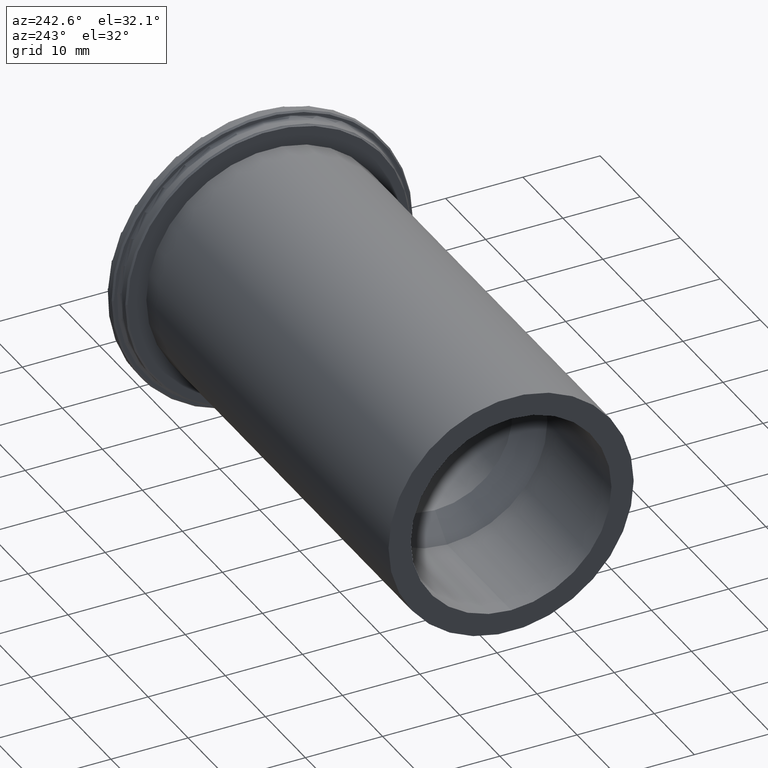
[diagram: clean part render]
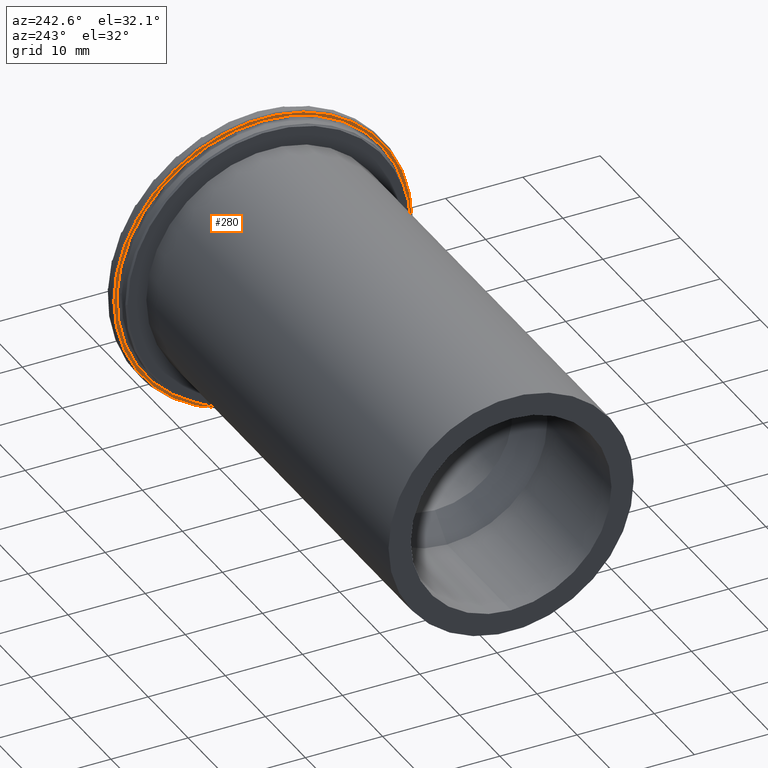
[diagram: same view with one face highlighted and labeled with its STEP entity id]
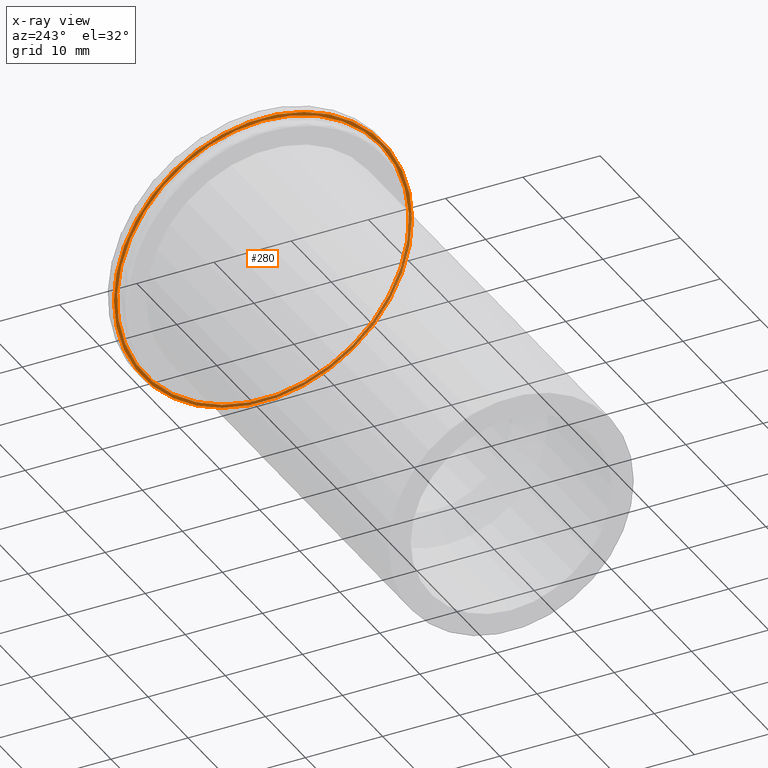
[diagram: x-ray of the same camera — body ghosted, the highlighted face saturated]
A machine part, auxiliary view. The second image highlights one B-rep face of the part: STEP entity #280.
The next image is the same camera in x-ray: the body ghosted, the highlighted face saturated — about 31% of this face is hidden behind the body in this view.
In plain terms, the highlighted planar face has unit normal (-1, 0, 0).
Its self-contained STEP definition (entity closure, byte-faithful):
#82=FACE_BOUND('',#113,.T.);
#86=PLANE('',#327);
#98=FACE_OUTER_BOUND('',#112,.T.);
#112=EDGE_LOOP('',(#237));
#113=EDGE_LOOP('',(#238));
#148=CIRCLE('',#323,19.3);
#151=CIRCLE('',#328,18.9);
#171=VERTEX_POINT('',#494);
#174=VERTEX_POINT('',#504);
#194=EDGE_CURVE('',#171,#171,#148,.T.);
#198=EDGE_CURVE('',#174,#174,#151,.T.);
#237=ORIENTED_EDGE('',*,*,#194,.F.);
#238=ORIENTED_EDGE('',*,*,#198,.F.);
#280=ADVANCED_FACE('',(#98,#82),#86,.T.);
#323=AXIS2_PLACEMENT_3D('',#496,#390,#391);
#327=AXIS2_PLACEMENT_3D('',#503,#399,#400);
#328=AXIS2_PLACEMENT_3D('',#505,#401,#402);
#390=DIRECTION('center_axis',(1.,0.,0.));
#391=DIRECTION('ref_axis',(0.,-1.,0.));
#399=DIRECTION('center_axis',(-1.,0.,0.));
#400=DIRECTION('ref_axis',(0.,0.,1.));
#401=DIRECTION('center_axis',(-1.,0.,0.));
#402=DIRECTION('ref_axis',(0.,-1.,1.83697019872103E-16));
#494=CARTESIAN_POINT('',(-1.5,19.3,2.36356832235439E-15));
#496=CARTESIAN_POINT('Origin',(-1.5,0.,0.));
#503=CARTESIAN_POINT('Origin',(-1.5,19.5,0.));
#504=CARTESIAN_POINT('',(-1.5,-2.3145824503885E-15,18.9));
#505=CARTESIAN_POINT('Origin',(-1.5,0.,0.));